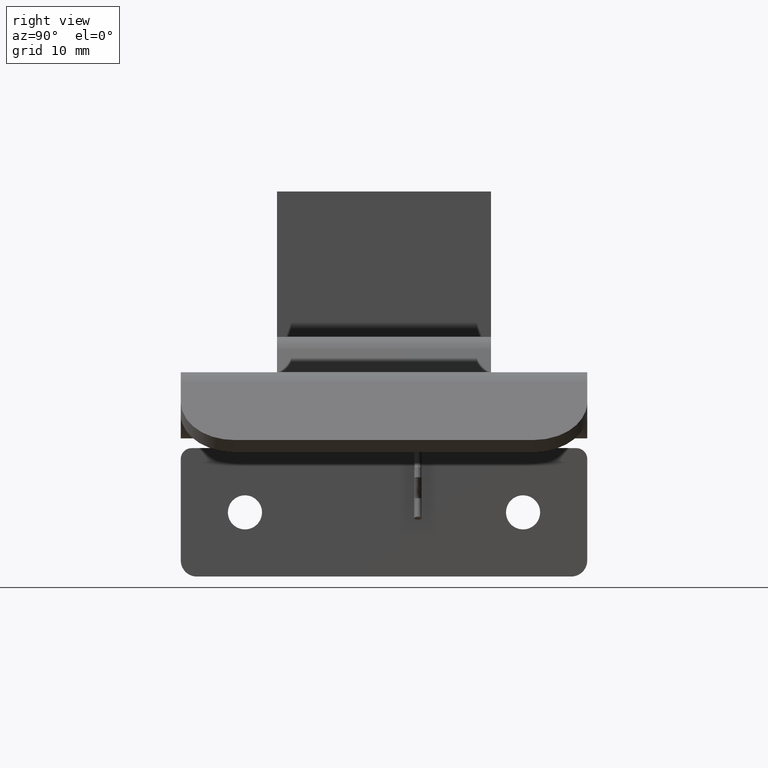
[diagram: clean part render]
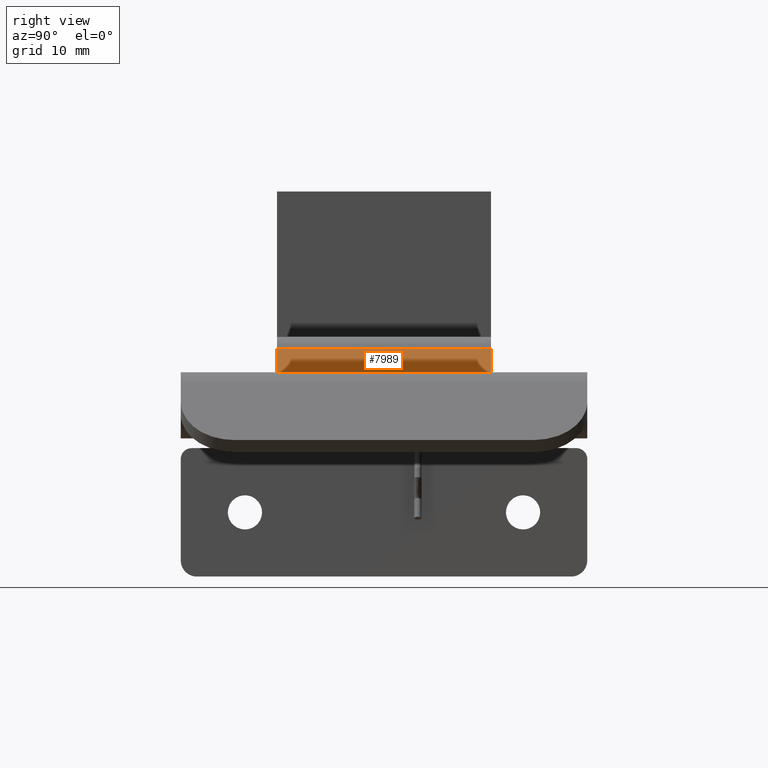
[diagram: same view with one face highlighted and labeled with its STEP entity id]
A machine part, right view. The second image highlights one B-rep face of the part: STEP entity #7989.
In plain terms, the highlighted face is a freeform B-spline surface patch.
Its self-contained STEP definition (entity closure, byte-faithful):
#7634=CARTESIAN_POINT('',(4.699982000000000,-10.0,3.099990999999790));
#7635=VERTEX_POINT('',#7634);
#7641=CARTESIAN_POINT('',(3.525648692121520,-10.0,5.336775791144699));
#7642=VERTEX_POINT('',#7641);
#7643=CARTESIAN_POINT('',(4.699982000000000,-10.0,3.099990999999790));
#7644=CARTESIAN_POINT('',(3.525648692121520,-10.0,5.336775791144699));
#7645=QUASI_UNIFORM_CURVE('',1,(#7643,#7644),.UNSPECIFIED.,.F.,.U.);
#7646=EDGE_CURVE('',#7635,#7642,#7645,.T.);
#7844=CARTESIAN_POINT('',(3.525648692121520,10.0,5.336775791144699));
#7845=VERTEX_POINT('',#7844);
#7859=CARTESIAN_POINT('',(4.699982000000000,10.0,3.099990999999790));
#7860=VERTEX_POINT('',#7859);
#7861=CARTESIAN_POINT('',(4.699982000000000,10.0,3.099990999999790));
#7862=CARTESIAN_POINT('',(3.525648692121520,10.0,5.336775791144699));
#7863=QUASI_UNIFORM_CURVE('',1,(#7861,#7862),.UNSPECIFIED.,.F.,.U.);
#7864=EDGE_CURVE('',#7860,#7845,#7863,.T.);
#7964=CARTESIAN_POINT('',(3.525648692121520,10.0,5.336775791144699));
#7965=CARTESIAN_POINT('',(3.525648692121520,-10.0,5.336775791144699));
#7966=QUASI_UNIFORM_CURVE('',1,(#7964,#7965),.UNSPECIFIED.,.F.,.U.);
#7967=EDGE_CURVE('',#7845,#7642,#7966,.T.);
#7974=CARTESIAN_POINT('',(3.466990723621469,-10.998999961236120,5.448503229121733));
#7975=CARTESIAN_POINT('',(4.758639978999404,-10.998999961236120,2.988263542024340));
#7976=CARTESIAN_POINT('',(3.466990723621469,10.999000497677921,5.448503229121733));
#7977=CARTESIAN_POINT('',(4.758639978999404,10.999000497677921,2.988263542024340));
#7978=B_SPLINE_SURFACE_WITH_KNOTS('',1,1,((#7974,#7976),(#7975,#7977)),.UNSPECIFIED.,.F.,.F.,.U.,(2,2),(2,2),(0.0,2.778693419016831),(0.0,21.998000458914039),.UNSPECIFIED.);
#7979=ORIENTED_EDGE('',*,*,#7646,.F.);
#7980=CARTESIAN_POINT('',(4.699982000000000,10.0,3.099990999999790));
#7981=CARTESIAN_POINT('',(4.699982000000000,-10.0,3.099990999999790));
#7982=QUASI_UNIFORM_CURVE('',1,(#7980,#7981),.UNSPECIFIED.,.F.,.U.);
#7983=EDGE_CURVE('',#7860,#7635,#7982,.T.);
#7984=ORIENTED_EDGE('',*,*,#7983,.F.);
#7985=ORIENTED_EDGE('',*,*,#7864,.T.);
#7986=ORIENTED_EDGE('',*,*,#7967,.T.);
#7987=EDGE_LOOP('',(#7979,#7984,#7985,#7986));
#7988=FACE_OUTER_BOUND('',#7987,.T.);
#7989=ADVANCED_FACE('',(#7988),#7978,.T.);